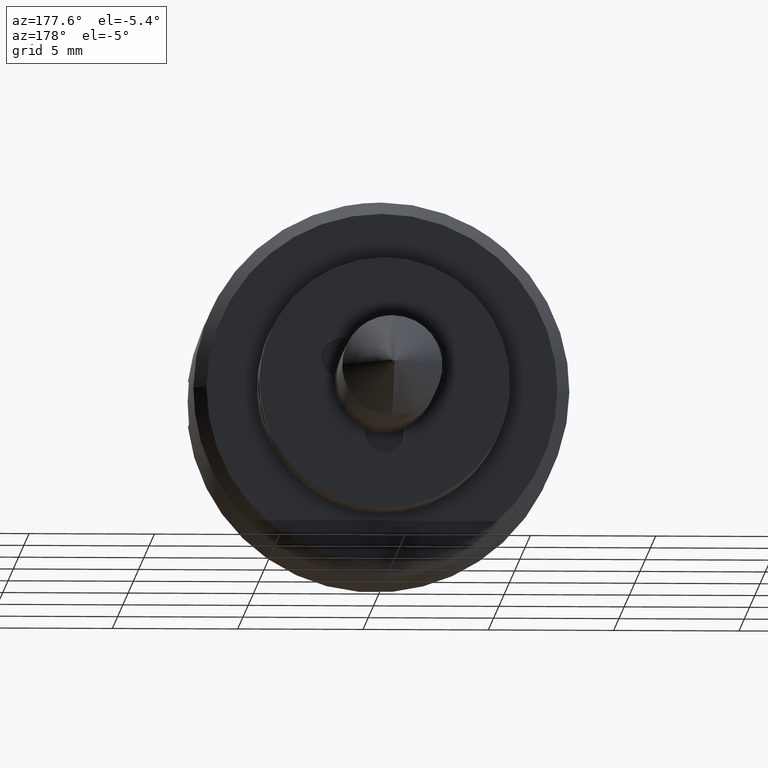
[diagram: clean part render]
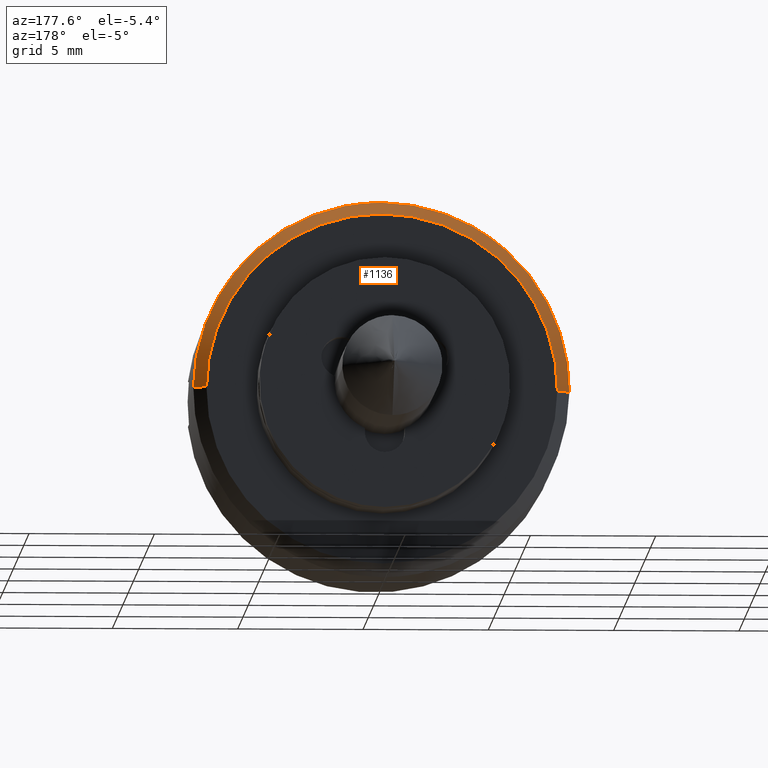
[diagram: same view with one face highlighted and labeled with its STEP entity id]
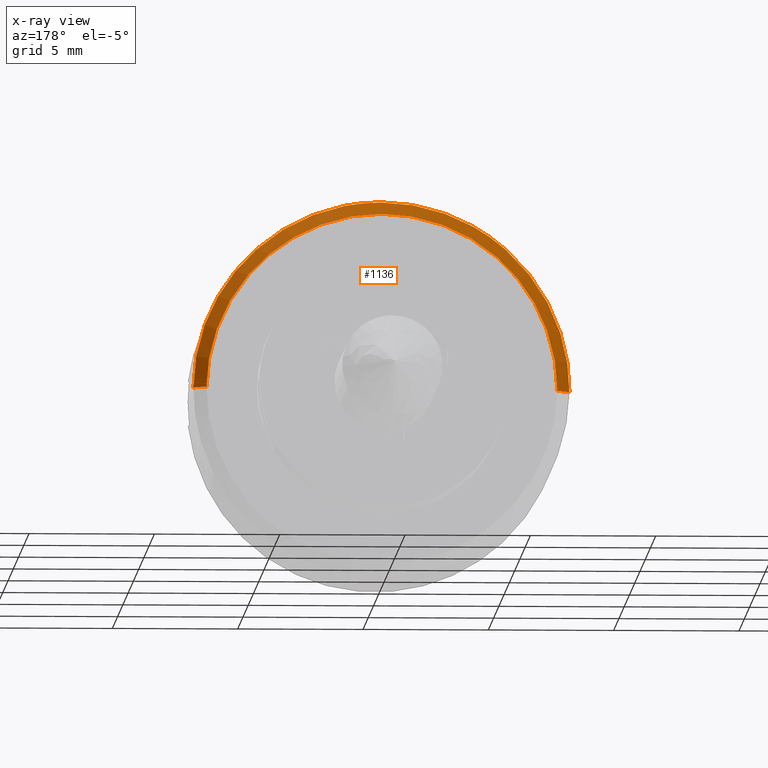
[diagram: x-ray of the same camera — body ghosted, the highlighted face saturated]
A machine part, auxiliary view. The second image highlights one B-rep face of the part: STEP entity #1136.
The next image is the same camera in x-ray: the body ghosted, the highlighted face saturated — about 0% of this face is hidden behind the body in this view.
In plain terms, the highlighted face is a freeform B-spline surface patch.
Its self-contained STEP definition (entity closure, byte-faithful):
#1023=CARTESIAN_POINT('',(-1.987499999999999,-6.987233937410895,0.060976666794888));
#1024=CARTESIAN_POINT('',(-1.987499999999998,-6.926257270616007,7.048210604205784));
#1025=CARTESIAN_POINT('',(-1.987499999999999,0.060976666794888,6.987233937410895));
#1026=CARTESIAN_POINT('',(-1.987499999999998,7.048210604205784,6.926257270616007));
#1027=CARTESIAN_POINT('',(-1.987499999999999,6.987233937410895,-0.060976666794888));
#1028=CARTESIAN_POINT('',(-2.512812500000062,-7.512526435120546,0.065560824973877));
#1029=CARTESIAN_POINT('',(-2.512812500000061,-7.446965610146669,7.578087260094423));
#1030=CARTESIAN_POINT('',(-2.512812500000062,0.065560824973877,7.512526435120546));
#1031=CARTESIAN_POINT('',(-2.512812500000061,7.578087260094423,7.446965610146669));
#1032=CARTESIAN_POINT('',(-2.512812500000062,7.512526435120546,-0.065560824973877));
#1040=(BOUNDED_SURFACE()B_SPLINE_SURFACE(2,1,((#1023,#1028),(#1024,#1029),(#1025,#1030),(#1026,#1031),(#1027,#1032)),.UNSPECIFIED.,.F.,.F.,.U.)B_SPLINE_SURFACE_WITH_KNOTS((3,2,3),(2,2),(0.0,12.447635316264479,24.895270632528948),(0.0,1.0),.UNSPECIFIED.)GEOMETRIC_REPRESENTATION_ITEM()RATIONAL_B_SPLINE_SURFACE(((1.0,1.0),(0.707106781186548,0.707106781186548),(1.0,1.0),(0.707106781186548,0.707106781186548),(1.0,1.0)))REPRESENTATION_ITEM('')SURFACE());
#1041=CARTESIAN_POINT('',(-2.500000000003621,-7.499714422984617,0.065449016264020));
#1042=VERTEX_POINT('',#1041);
#1043=CARTESIAN_POINT('',(-2.500000000000060,0.0,7.500000000000000));
#1044=VERTEX_POINT('',#1043);
#1045=CARTESIAN_POINT('',(-2.500000000003622,-7.499714422984617,0.065449016264020));
#1046=CARTESIAN_POINT('',(-2.500000000000060,-7.434834079410419,7.499999999999999));
#1047=CARTESIAN_POINT('',(-2.500000000000060,0.0,7.500000000000000));
#1055=(BOUNDED_CURVE()B_SPLINE_CURVE(2,(#1045,#1046,#1047),.UNSPECIFIED.,.F.,.U.)B_SPLINE_CURVE_WITH_KNOTS((3,3),(0.251539894336217,0.500000000000000),.UNSPECIFIED.)CURVE()GEOMETRIC_REPRESENTATION_ITEM()RATIONAL_B_SPLINE_CURVE((0.996414028097559,0.708910879621616,1.0))REPRESENTATION_ITEM(''));
#1056=EDGE_CURVE('',#1042,#1044,#1055,.T.);
#1057=ORIENTED_EDGE('',*,*,#1056,.F.);
#1058=CARTESIAN_POINT('',(-2.000000000003061,-6.999733461452061,0.061085748511123));
#1059=VERTEX_POINT('',#1058);
#1060=CARTESIAN_POINT('',(-2.000000000003061,-6.999733461452061,0.061085748511123));
#1061=CARTESIAN_POINT('',(-2.500000000003621,-7.499714422984617,0.065449016264020));
#1062=QUASI_UNIFORM_CURVE('',1,(#1060,#1061),.UNSPECIFIED.,.F.,.U.);
#1063=EDGE_CURVE('',#1059,#1042,#1062,.T.);
#1064=ORIENTED_EDGE('',*,*,#1063,.F.);
#1065=CARTESIAN_POINT('',(-2.0,0.0,7.0));
#1066=VERTEX_POINT('',#1065);
#1067=CARTESIAN_POINT('',(-2.0,0.0,7.0));
#1068=CARTESIAN_POINT('',(-2.000000000000000,-6.939178474120266,6.999999999999998));
#1069=CARTESIAN_POINT('',(-2.000000000003061,-6.999733461452061,0.061085748511123));
#1077=(BOUNDED_CURVE()B_SPLINE_CURVE(2,(#1067,#1068,#1069),.UNSPECIFIED.,.F.,.U.)B_SPLINE_CURVE_WITH_KNOTS((3,3),(0.500000000000000,0.748460105663881),.UNSPECIFIED.)CURVE()GEOMETRIC_REPRESENTATION_ITEM()RATIONAL_B_SPLINE_CURVE((1.0,0.708910879621501,0.996414028097787))REPRESENTATION_ITEM(''));
#1078=EDGE_CURVE('',#1066,#1059,#1077,.T.);
#1079=ORIENTED_EDGE('',*,*,#1078,.F.);
#1080=CARTESIAN_POINT('',(-2.000000000003061,6.999733461452062,-0.061085748511124));
#1081=VERTEX_POINT('',#1080);
#1082=CARTESIAN_POINT('',(-2.000000000003061,6.999733461452063,-0.061085748511124));
#1083=CARTESIAN_POINT('',(-2.000000000000000,7.0,-0.030543455767392));
#1084=CARTESIAN_POINT('',(-2.0,7.0,0.0));
#1085=CARTESIAN_POINT('',(-2.0,6.999999999999999,6.999999999999999));
#1086=CARTESIAN_POINT('',(-2.0,0.0,7.0));
#1094=(BOUNDED_CURVE()B_SPLINE_CURVE(2,(#1082,#1083,#1084,#1085,#1086),.UNSPECIFIED.,.F.,.U.)B_SPLINE_CURVE_WITH_KNOTS((3,2,3),(0.248460105663881,0.250000000000000,0.500000000000000),.UNSPECIFIED.)CURVE()GEOMETRIC_REPRESENTATION_ITEM()RATIONAL_B_SPLINE_CURVE((0.996414028097787,0.998195901565047,1.0,0.707106781186547,1.0))REPRESENTATION_ITEM(''));
#1095=EDGE_CURVE('',#1081,#1066,#1094,.T.);
#1096=ORIENTED_EDGE('',*,*,#1095,.F.);
#1097=CARTESIAN_POINT('',(-2.500000000003621,7.499714422984617,-0.065449016264019));
#1098=VERTEX_POINT('',#1097);
#1099=CARTESIAN_POINT('',(-2.000000000003061,6.999733461452062,-0.061085748511124));
#1100=CARTESIAN_POINT('',(-2.500000000003621,7.499714422984617,-0.065449016264019));
#1101=QUASI_UNIFORM_CURVE('',1,(#1099,#1100),.UNSPECIFIED.,.F.,.U.);
#1102=EDGE_CURVE('',#1081,#1098,#1101,.T.);
#1103=ORIENTED_EDGE('',*,*,#1102,.T.);
#1104=CARTESIAN_POINT('',(-2.500000000000061,4.969650040548164,5.617168189976106));
#1105=VERTEX_POINT('',#1104);
#1106=CARTESIAN_POINT('',(-2.500000000000060,4.969650040548164,5.617168189976106));
#1107=CARTESIAN_POINT('',(-2.500000000000060,7.500000000000000,3.378504168361096));
#1108=CARTESIAN_POINT('',(-2.500000000000060,7.500000000000000,0.0));
#1109=CARTESIAN_POINT('',(-2.500000000000060,7.500000000000000,-0.032725131181451));
#1110=CARTESIAN_POINT('',(-2.500000000003621,7.499714422984617,-0.065449016264019));
#1118=(BOUNDED_CURVE()B_SPLINE_CURVE(2,(#1106,#1107,#1108,#1109,#1110),.UNSPECIFIED.,.F.,.U.)B_SPLINE_CURVE_WITH_KNOTS((3,2,3),(0.615779870794315,0.750000000000000,0.751539894336217),.UNSPECIFIED.)CURVE()GEOMETRIC_REPRESENTATION_ITEM()RATIONAL_B_SPLINE_CURVE((0.854350161208974,0.842751337309558,1.0,0.998195901564931,0.996414028097559))REPRESENTATION_ITEM(''));
#1119=EDGE_CURVE('',#1105,#1098,#1118,.T.);
#1120=ORIENTED_EDGE('',*,*,#1119,.F.);
#1121=CARTESIAN_POINT('',(-2.500000000000060,0.0,7.500000000000000));
#1122=CARTESIAN_POINT('',(-2.500000000000060,2.841495324990860,7.500000000000000));
#1123=CARTESIAN_POINT('',(-2.500000000000060,4.969650040548164,5.617168189976106));
#1131=(BOUNDED_CURVE()B_SPLINE_CURVE(2,(#1121,#1122,#1123),.UNSPECIFIED.,.F.,.U.)B_SPLINE_CURVE_WITH_KNOTS((3,3),(0.500000000000000,0.615779870794315),.UNSPECIFIED.)CURVE()GEOMETRIC_REPRESENTATION_ITEM()RATIONAL_B_SPLINE_CURVE((1.0,0.864355443876990,0.854350161208974))REPRESENTATION_ITEM(''));
#1132=EDGE_CURVE('',#1044,#1105,#1131,.T.);
#1133=ORIENTED_EDGE('',*,*,#1132,.F.);
#1134=EDGE_LOOP('',(#1057,#1064,#1079,#1096,#1103,#1120,#1133));
#1135=FACE_OUTER_BOUND('',#1134,.T.);
#1136=ADVANCED_FACE('',(#1135),#1040,.T.);